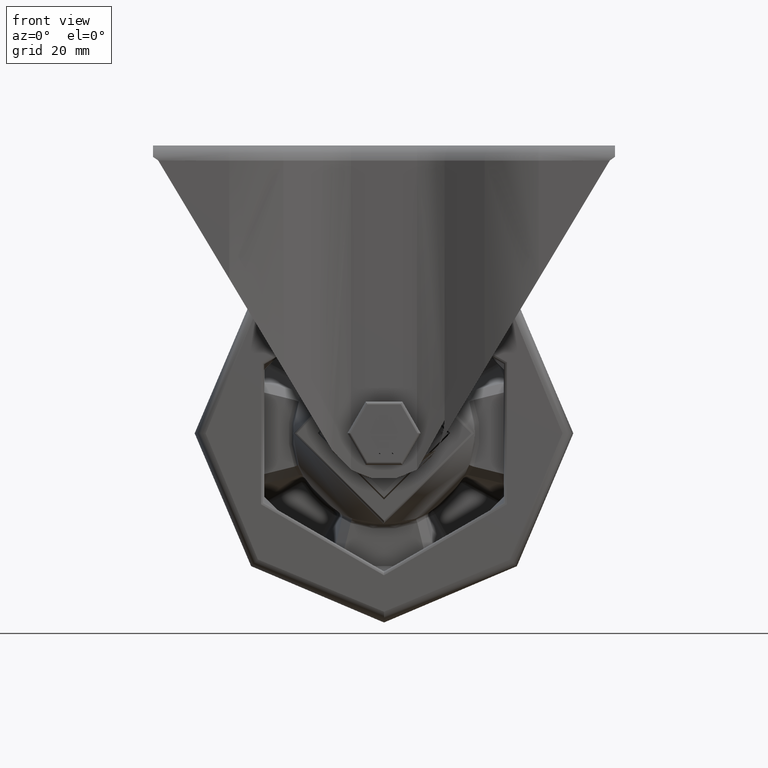
[diagram: clean part render]
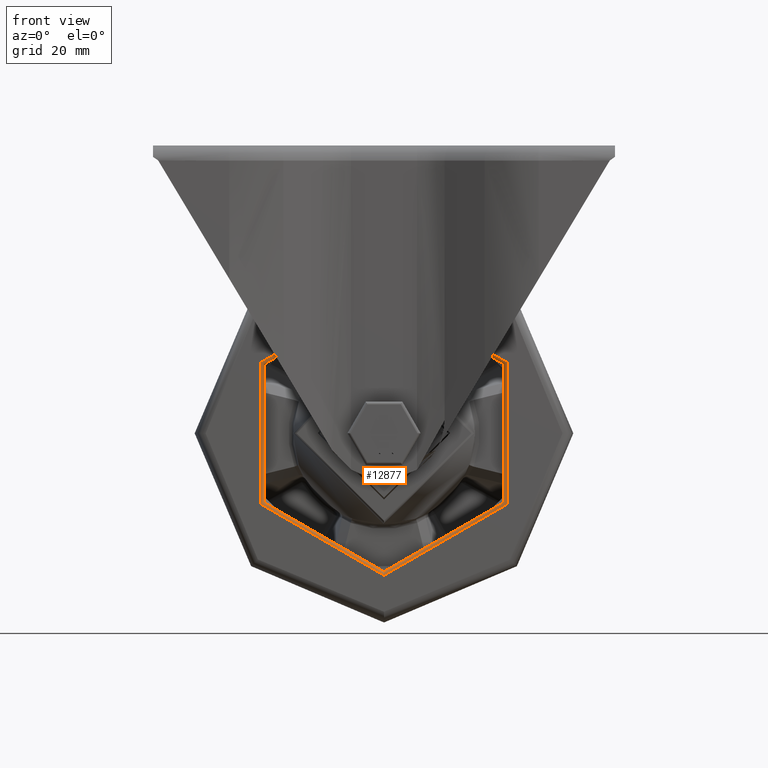
[diagram: same view with one face highlighted and labeled with its STEP entity id]
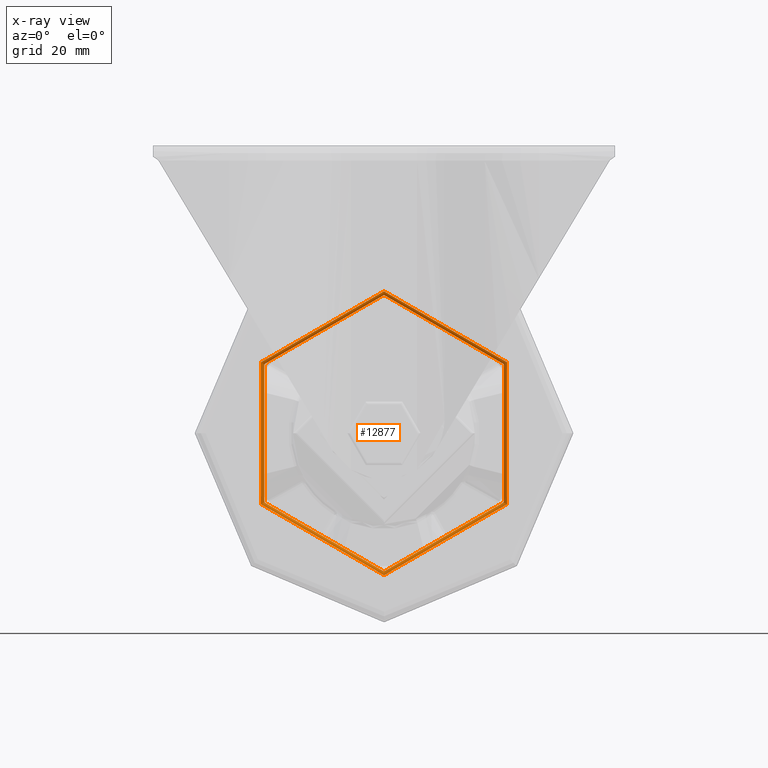
[diagram: x-ray of the same camera — body ghosted, the highlighted face saturated]
A machine part, front view. The second image highlights one B-rep face of the part: STEP entity #12877.
The next image is the same camera in x-ray: the body ghosted, the highlighted face saturated — about 0% of this face is hidden behind the body in this view.
In plain terms, the highlighted toroidal blend (fillet) surface has major radius 37.5 mm and minor (blend) radius 1 mm.
Its self-contained STEP definition (entity closure, byte-faithful):
#643=TOROIDAL_SURFACE('',#14028,37.5,1.);
#1760=CIRCLE('',#14021,36.5);
#1767=CIRCLE('',#14029,37.5);
#1768=CIRCLE('',#14030,1.);
#2324=FACE_OUTER_BOUND('',#3167,.T.);
#3167=EDGE_LOOP('',(#9121,#9122,#9123,#9124));
#5595=VERTEX_POINT('',#19057);
#5616=VERTEX_POINT('',#19415);
#6920=EDGE_CURVE('',#5595,#5595,#1760,.T.);
#6944=EDGE_CURVE('',#5616,#5616,#1767,.T.);
#6945=EDGE_CURVE('',#5616,#5595,#1768,.T.);
#9121=ORIENTED_EDGE('',*,*,#6944,.T.);
#9122=ORIENTED_EDGE('',*,*,#6945,.T.);
#9123=ORIENTED_EDGE('',*,*,#6920,.T.);
#9124=ORIENTED_EDGE('',*,*,#6945,.F.);
#12877=ADVANCED_FACE('',(#2324),#643,.T.);
#14021=AXIS2_PLACEMENT_3D('',#19058,#15584,#15585);
#14028=AXIS2_PLACEMENT_3D('',#19414,#15599,#15600);
#14029=AXIS2_PLACEMENT_3D('',#19416,#15601,#15602);
#14030=AXIS2_PLACEMENT_3D('',#19417,#15603,#15604);
#15584=DIRECTION('center_axis',(0.,1.,0.));
#15585=DIRECTION('ref_axis',(0.,0.,1.));
#15599=DIRECTION('center_axis',(0.,1.,0.));
#15600=DIRECTION('ref_axis',(0.,0.,1.));
#15601=DIRECTION('center_axis',(0.,-1.,0.));
#15602=DIRECTION('ref_axis',(0.,0.,1.));
#15603=DIRECTION('center_axis',(-1.,0.,1.22464679914735E-16));
#15604=DIRECTION('ref_axis',(-1.22464679914735E-16,0.,-1.));
#19057=CARTESIAN_POINT('',(-4.46996081688784E-15,-19.,-36.5));
#19058=CARTESIAN_POINT('Origin',(0.,-19.,0.));
#19414=CARTESIAN_POINT('Origin',(0.,-19.,0.));
#19415=CARTESIAN_POINT('',(4.59242549680257E-15,-20.,-37.5));
#19416=CARTESIAN_POINT('Origin',(0.,-20.,0.));
#19417=CARTESIAN_POINT('Origin',(-4.59242549680258E-15,-19.,-37.5));